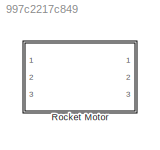
MODEL slx_997c2217c849
KIND library
CONFIG AbsTol = auto
CONFIG EnableMultiTasking = off
CONFIG FixedStep = auto
CONFIG MaxStep = auto
CONFIG MinStep = auto
CONFIG RelTol = 1e-3
CONFIG SampleTimeConstraint = Unconstrained
CONFIG Solver = VariableStepAuto
CONFIG SolverName = VariableStepAuto
CONFIG StartTime = 0.0
CONFIG StopTime = 10.0
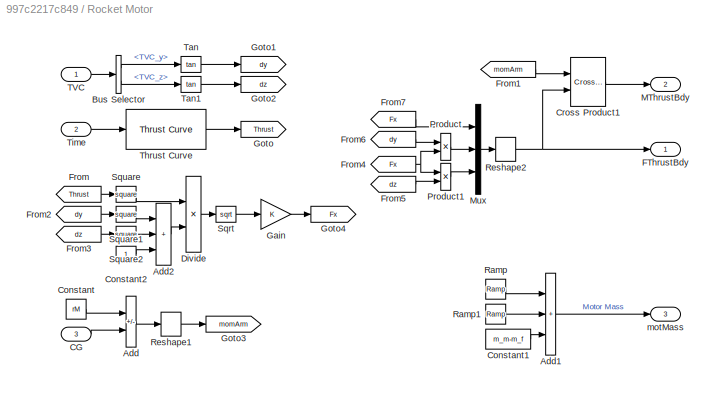
BLOCK [SubSystem] Rocket Motor
  Ports = [3, 3]
  RequestExecContextInheritance = off
BLOCK [Sum] Rocket Motor/Add
  IconShape = rectangular
  Inputs = +-
  Ports = [2, 1]
BLOCK [Sum] Rocket Motor/Add1
  IconShape = rectangular
  Inputs = +++
  Ports = [3, 1]
BLOCK [Sum] Rocket Motor/Add2
  IconShape = rectangular
  Inputs = +++
  Ports = [3, 1]
BLOCK [BusSelector] Rocket Motor/Bus Selector
  OutputSignals = TVC_y,TVC_z
  Ports = [1, 2]
BLOCK [Inport] Rocket Motor/CG
  Port = 3
BLOCK [Constant] Rocket Motor/Constant
  Value = rM
BLOCK [Constant] Rocket Motor/Constant1
  Value = m_m-m_f
BLOCK [Constant] Rocket Motor/Constant2
BLOCK [Reference] Rocket Motor/Cross Product1  REF=vrlib/Utilities/Cross Product
  Ports = [2, 1]
  SourceBlock = vrlib/Utilities/Cross Product
  SourceProductBaseCode = SL
  SourceType = Cross Product
BLOCK [Product] Rocket Motor/Divide
  Inputs = */
  Ports = [2, 1]
BLOCK [Outport] Rocket Motor/FThrustBdy
  VectorParamsAs1DForOutWhenUnconnected = off
BLOCK [From] Rocket Motor/From
  GotoTag = Thrust
BLOCK [From] Rocket Motor/From1
  GotoTag = momArm
BLOCK [From] Rocket Motor/From2
  GotoTag = dy
BLOCK [From] Rocket Motor/From3
  GotoTag = dz
BLOCK [From] Rocket Motor/From4
  GotoTag = Fx
BLOCK [From] Rocket Motor/From5
  GotoTag = dz
BLOCK [From] Rocket Motor/From6
  GotoTag = dy
BLOCK [From] Rocket Motor/From7
  GotoTag = Fx
BLOCK [Gain] Rocket Motor/Gain
BLOCK [Goto] Rocket Motor/Goto
  GotoTag = Thrust
BLOCK [Goto] Rocket Motor/Goto1
  GotoTag = dy
BLOCK [Goto] Rocket Motor/Goto2
  GotoTag = dz
BLOCK [Goto] Rocket Motor/Goto3
  GotoTag = momArm
BLOCK [Goto] Rocket Motor/Goto4
  GotoTag = Fx
BLOCK [Outport] Rocket Motor/MThrustBdy
  Port = 2
  VectorParamsAs1DForOutWhenUnconnected = off
BLOCK [Mux] Rocket Motor/Mux
  DisplayOption = bar
  Inputs = 3
  Ports = [3, 1]
BLOCK [Product] Rocket Motor/Product
  Ports = [2, 1]
BLOCK [Product] Rocket Motor/Product1
  Ports = [2, 1]
BLOCK [Reference] Rocket Motor/Ramp  REF=simulink/Sources/Ramp
  Ports = [0, 1]
  SourceBlock = simulink/Sources/Ramp
  SourceProductBaseCode = SL
  SourceType = Ramp
BLOCK [Reference] Rocket Motor/Ramp1  REF=simulink/Sources/Ramp
  Ports = [0, 1]
  SourceBlock = simulink/Sources/Ramp
  SourceProductBaseCode = SL
  SourceType = Ramp
BLOCK [Reshape] Rocket Motor/Reshape1
  OutputDimensionality = Column vector (2-D)
  Ports = [1, 1]
BLOCK [Reshape] Rocket Motor/Reshape2
  OutputDimensionality = Column vector (2-D)
  Ports = [1, 1]
BLOCK [Sqrt] Rocket Motor/Sqrt
BLOCK [Math] Rocket Motor/Square
  Operator = square
  Ports = [1, 1]
BLOCK [Math] Rocket Motor/Square1
  Operator = square
  Ports = [1, 1]
BLOCK [Math] Rocket Motor/Square2
  Operator = square
  Ports = [1, 1]
BLOCK [Inport] Rocket Motor/TVC
BLOCK [Trigonometry] Rocket Motor/Tan
  Operator = tan
  Ports = [1, 1]
BLOCK [Trigonometry] Rocket Motor/Tan1
  Operator = tan
  Ports = [1, 1]
BLOCK [Reference] Rocket Motor/Thrust Curve   REF=thrustCurve_ul/Thrust Curve 
  Ports = [1, 1]
  SourceBlock = thrustCurve_ul/Thrust Curve
BLOCK [Inport] Rocket Motor/Time
  Port = 2
BLOCK [Outport] Rocket Motor/motMass
  Port = 3
  VectorParamsAs1DForOutWhenUnconnected = off
LINE Rocket Motor/Add1:1 -> Rocket Motor/motMass:1
LINE Rocket Motor/Add2:1 -> Rocket Motor/Divide:2
LINE Rocket Motor/Add:1 -> Rocket Motor/Reshape1:1
LINE Rocket Motor/Bus Selector:1 -> Rocket Motor/Tan:1
LINE Rocket Motor/Bus Selector:2 -> Rocket Motor/Tan1:1
LINE Rocket Motor/CG:1 -> Rocket Motor/Add:2
LINE Rocket Motor/Constant1:1 -> Rocket Motor/Add1:3
LINE Rocket Motor/Constant2:1 -> Rocket Motor/Add2:3
LINE Rocket Motor/Constant:1 -> Rocket Motor/Add:1
LINE Rocket Motor/Cross Product1:1 -> Rocket Motor/MThrustBdy:1
LINE Rocket Motor/Divide:1 -> Rocket Motor/Sqrt:1
LINE Rocket Motor/From1:1 -> Rocket Motor/Cross Product1:1
LINE Rocket Motor/From2:1 -> Rocket Motor/Square1:1
LINE Rocket Motor/From3:1 -> Rocket Motor/Square2:1
NET Rocket Motor/From4:1 -> Rocket Motor/Product1:1, Rocket Motor/Product:2
LINE Rocket Motor/From5:1 -> Rocket Motor/Product1:2
LINE Rocket Motor/From6:1 -> Rocket Motor/Product:1
LINE Rocket Motor/From7:1 -> Rocket Motor/Mux:1
LINE Rocket Motor/From:1 -> Rocket Motor/Square:1
LINE Rocket Motor/Gain:1 -> Rocket Motor/Goto4:1
LINE Rocket Motor/Mux:1 -> Rocket Motor/Reshape2:1
LINE Rocket Motor/Product1:1 -> Rocket Motor/Mux:3
LINE Rocket Motor/Product:1 -> Rocket Motor/Mux:2
LINE Rocket Motor/Ramp1:1 -> Rocket Motor/Add1:2
LINE Rocket Motor/Ramp:1 -> Rocket Motor/Add1:1
LINE Rocket Motor/Reshape1:1 -> Rocket Motor/Goto3:1
NET Rocket Motor/Reshape2:1 -> Rocket Motor/Cross Product1:2, Rocket Motor/FThrustBdy:1
LINE Rocket Motor/Sqrt:1 -> Rocket Motor/Gain:1
LINE Rocket Motor/Square1:1 -> Rocket Motor/Add2:1
LINE Rocket Motor/Square2:1 -> Rocket Motor/Add2:2
LINE Rocket Motor/Square:1 -> Rocket Motor/Divide:1
LINE Rocket Motor/TVC:1 -> Rocket Motor/Bus Selector:1
LINE Rocket Motor/Tan1:1 -> Rocket Motor/Goto2:1
LINE Rocket Motor/Tan:1 -> Rocket Motor/Goto1:1
LINE Rocket Motor/Thrust Curve :1 -> Rocket Motor/Goto:1
LINE Rocket Motor/Time:1 -> Rocket Motor/Thrust Curve :1
note: NET lines group one-source signal fan-out (src -> all destinations, sorted); 1:1 wires keep LINE
